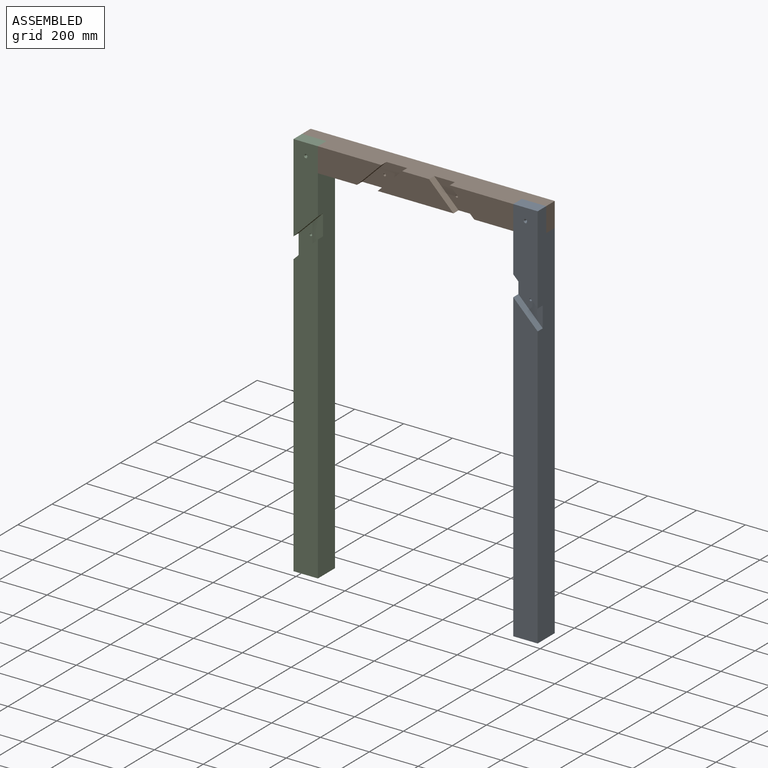
[diagram: assembled view]
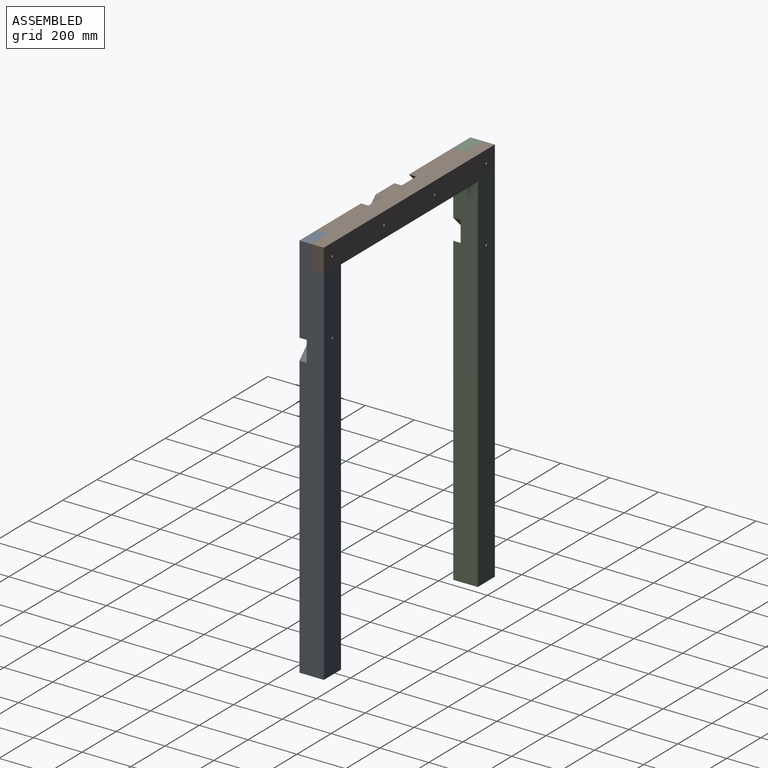
[diagram: assembled view, second angle]
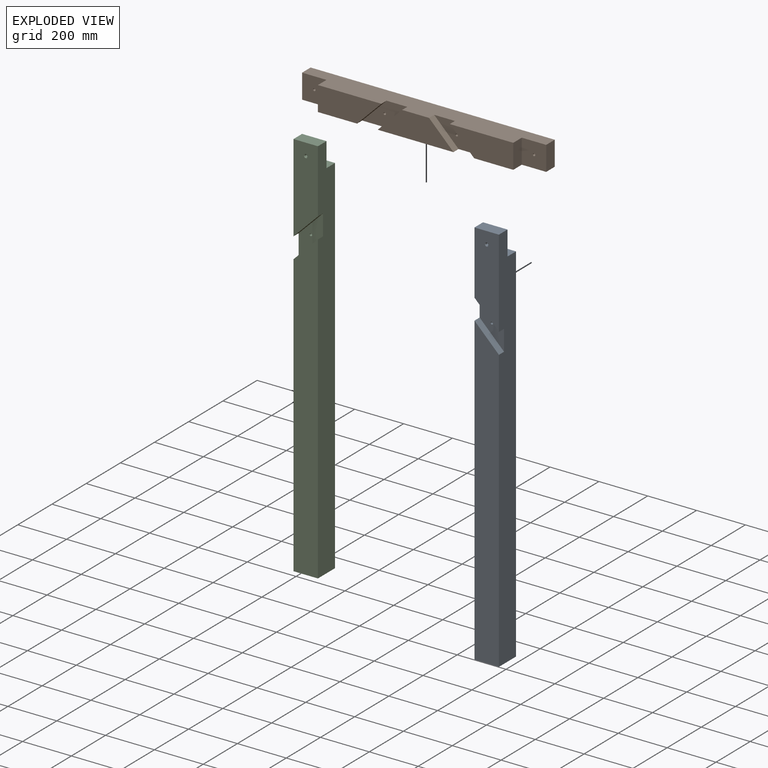
[diagram: exploded view]
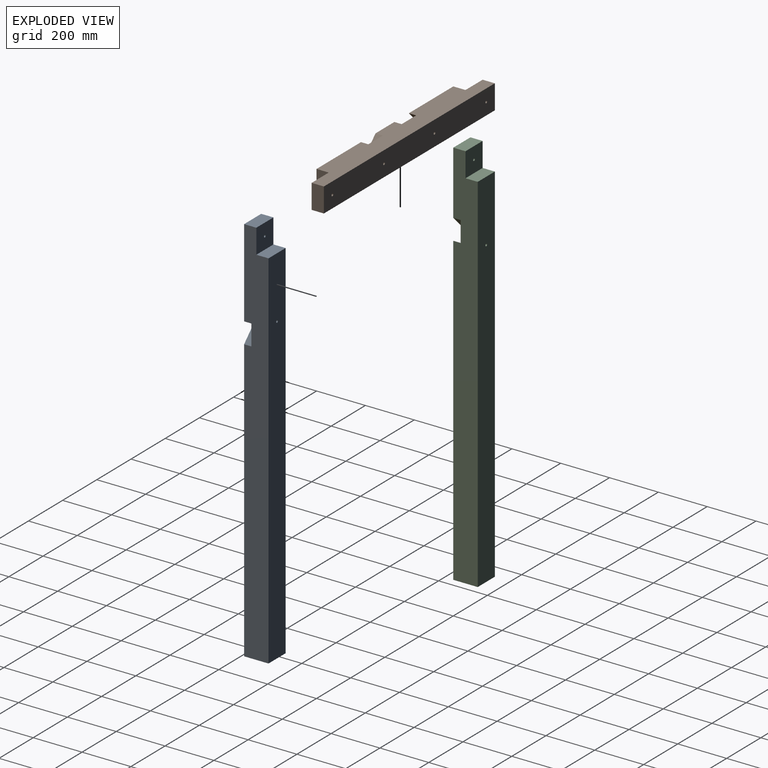
[diagram: exploded view, second angle]
ASSEMBLY  parts=3 mates=6
PART A: 15 faces, bbox 100x100x1600 mm
  f0: plane 360x100mm, normal (0,-1,0), area 30823.3mm2, adj f1,f4,f7,f10,f14
  f1: plane 1600x100mm, normal (-1,0,0), area 152454.4mm2, adj f0,f2,f3,f5,f6,f7,f8,f9
  f2: plane 100x50mm, normal (0,0,1), area 5000mm2, adj f1,f3,f4,f8
  f3: plane 1500x100mm, normal (0,1,0), area 149921.5mm2, adj f1,f2,f4,f6,f12
  f4: plane 1600x100mm, normal (1,0,0), area 152454.4mm2, adj f0,f2,f3,f5,f6,f7,f8,f9
  f5: plane 1255.15x100mm, normal (0,-1,0), area 120514.7mm2, adj f1,f4,f6,f9
  f6: plane 100x100mm, normal (0,0,-1), area 10000mm2, adj f1,f3,f4,f5
  f7: plane 100x50mm, normal (0,0,1), area 5000mm2, adj f0,f1,f4,f8
  f8: plane 100x100mm, normal (0,1,0), area 9921.5mm2, adj f1,f2,f4,f7,f13
  f9: plane 100x100mm, normal (0.71,0,0.71), area 4242.6mm2, adj f1,f4,f5,f11
  f10: plane 100x100mm, normal (-0.71,0,-0.71), area 4242.6mm2, adj f0,f1,f4,f11
  f11: plane 184.85x100mm, normal (0,-1,0), area 8406.7mm2, adj f1,f4,f9,f10,f12
  f12: cylinder r=5mm len=70mm, axis (0,-1,0), area 2199.1mm2, adj f3,f11
  f13: cylinder r=5mm len=47.5mm, axis (0,-1,0), area 1492.3mm2, adj f8,f14
  f14: cone r=5mm half-angle=45deg, axis (0,-1,0), area 138.8mm2, adj f0,f13
PART B: 22 faces, bbox 1000x100x100 mm
  f0: plane 260x100mm, normal (0,-1,0), area 21000mm2, adj f2,f3,f7,f15
  f1: plane 310.29x100mm, normal (0,-1,0), area 21029.4mm2, adj f2,f3,f12,f16
  f2: plane 1000x100mm, normal (0,0,-1), area 84908.8mm2, adj f0,f1,f4,f5,f6,f7,f8,f9
  f3: plane 1000x100mm, normal (0,0,1), area 84908.8mm2, adj f0,f1,f4,f5,f6,f7,f8,f9
  f4: plane 1000x100mm, normal (0,1,0), area 99685.8mm2, adj f2,f3,f5,f11,f18,f19,f20,f21
  f5: plane 100x50mm, normal (-1,0,0), area 5000mm2, adj f2,f3,f4,f6
  f6: plane 100x100mm, normal (0,-1,0), area 9921.5mm2, adj f2,f3,f5,f7,f21
  f7: plane 100x50mm, normal (-1,0,0), area 5000mm2, adj f0,f2,f3,f6
  f8: plane 260x100mm, normal (0,-1,0), area 21000mm2, adj f2,f3,f9,f13
  f9: plane 100x50mm, normal (1,0,0), area 5000mm2, adj f2,f3,f8,f10
  f10: plane 100x100mm, normal (0,-1,0), area 9921.5mm2, adj f2,f3,f9,f11,f20
  f11: plane 100x50mm, normal (1,0,0), area 5000mm2, adj f2,f3,f4,f10
  f12: plane 100x100mm, normal (0.71,0,0.71), area 4242.6mm2, adj f1,f2,f3,f14
  f13: plane 100x100mm, normal (-0.71,0,-0.71), area 4242.6mm2, adj f2,f3,f8,f14
  f14: plane 184.85x100mm, normal (0,-1,0), area 8406.7mm2, adj f2,f3,f12,f13,f19
  f15: plane 100x100mm, normal (0.71,0,-0.71), area 4242.6mm2, adj f0,f2,f3,f17
  f16: plane 100x100mm, normal (-0.71,0,0.71), area 4242.6mm2, adj f1,f2,f3,f17
  f17: plane 184.85x100mm, normal (0,-1,0), area 8406.7mm2, adj f2,f3,f15,f16,f18
  f18: cylinder r=5mm len=70mm, axis (0,-1,0), area 2199.1mm2, adj f4,f17
  f19: cylinder r=5mm len=70mm, axis (0,-1,0), area 2199.1mm2, adj f4,f14
  f20: cylinder r=5mm len=50mm, axis (0,-1,0), area 1570.8mm2, adj f4,f10
  f21: cylinder r=5mm len=50mm, axis (0,-1,0), area 1570.8mm2, adj f4,f6
PART C: 15 faces, bbox 100x100x1600 mm
  f0: plane 360x100mm, normal (0,-1,0), area 30823.3mm2, adj f1,f2,f7,f9,f14
  f1: plane 1600x100mm, normal (1,0,0), area 152454.4mm2, adj f0,f3,f4,f5,f6,f7,f8,f9
  f2: plane 1600x100mm, normal (-1,0,0), area 152454.4mm2, adj f0,f3,f4,f5,f6,f7,f8,f9
  f3: plane 1500x100mm, normal (0,1,0), area 149921.5mm2, adj f1,f2,f5,f6,f12
  f4: plane 1255.15x100mm, normal (0,-1,0), area 120514.7mm2, adj f1,f2,f5,f10
  f5: plane 100x100mm, normal (0,0,-1), area 10000mm2, adj f1,f2,f3,f4
  f6: plane 100x50mm, normal (0,0,1), area 5000mm2, adj f1,f2,f3,f8
  f7: plane 100x50mm, normal (0,0,1), area 5000mm2, adj f0,f1,f2,f8
  f8: plane 100x100mm, normal (0,1,0), area 9921.5mm2, adj f1,f2,f6,f7,f13
  f9: plane 100x100mm, normal (0.71,0,-0.71), area 4242.6mm2, adj f0,f1,f2,f11
  f10: plane 100x100mm, normal (-0.71,0,0.71), area 4242.6mm2, adj f1,f2,f4,f11
  f11: plane 184.85x100mm, normal (0,-1,0), area 8406.7mm2, adj f1,f2,f9,f10,f12
  f12: cylinder r=5mm len=70mm, axis (0,-1,0), area 2199.1mm2, adj f3,f11
  f13: cylinder r=5mm len=47.5mm, axis (0,-1,0), area 1492.3mm2, adj f8,f14
  f14: cone r=5mm half-angle=45deg, axis (0,-1,0), area 138.8mm2, adj f0,f13
PLACE A t=(313.6,-869.92,-377.13)mm
PLACE B t=(313.6,-869.92,-377.13)mm fixed
PLACE C t=(313.6,-869.92,-377.13)mm
MATE planar B.f5 <-> C.f2  axis (-1,0,0) through (-186.4,-844.92,-427.13)mm
MATE planar A.f7 <-> B.f3  axis (0,0,1) through (763.6,-894.92,-377.13)mm
MATE planar B.f20 <-> A.f14  axis (0,-1,0) through (763.6,-869.92,-427.13)mm
MATE planar C.f7 <-> B.f3  axis (0,0,1) through (-136.4,-894.92,-377.13)mm
MATE planar B.f21 <-> C.f14  axis (0,-1,0) through (-136.4,-869.92,-427.13)mm
MATE planar B.f11 <-> A.f4  axis (1,0,0) through (813.6,-844.92,-427.13)mm
